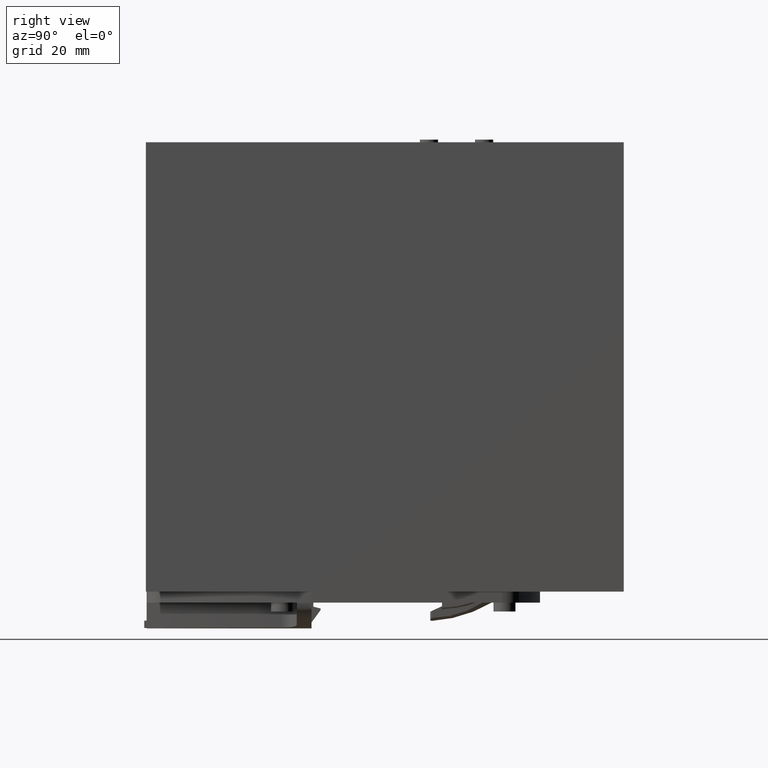
[diagram: clean part render]
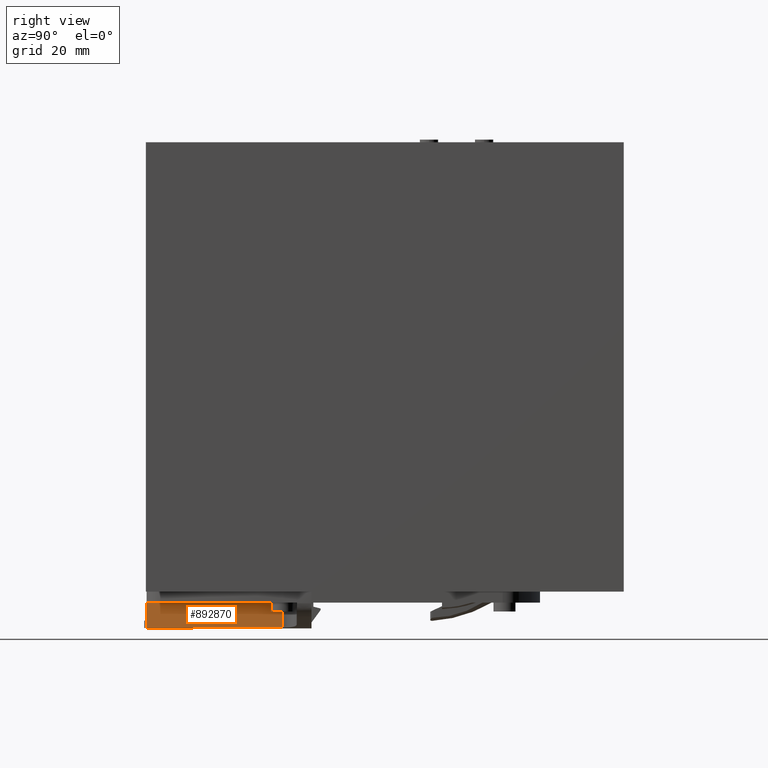
[diagram: same view with one face highlighted and labeled with its STEP entity id]
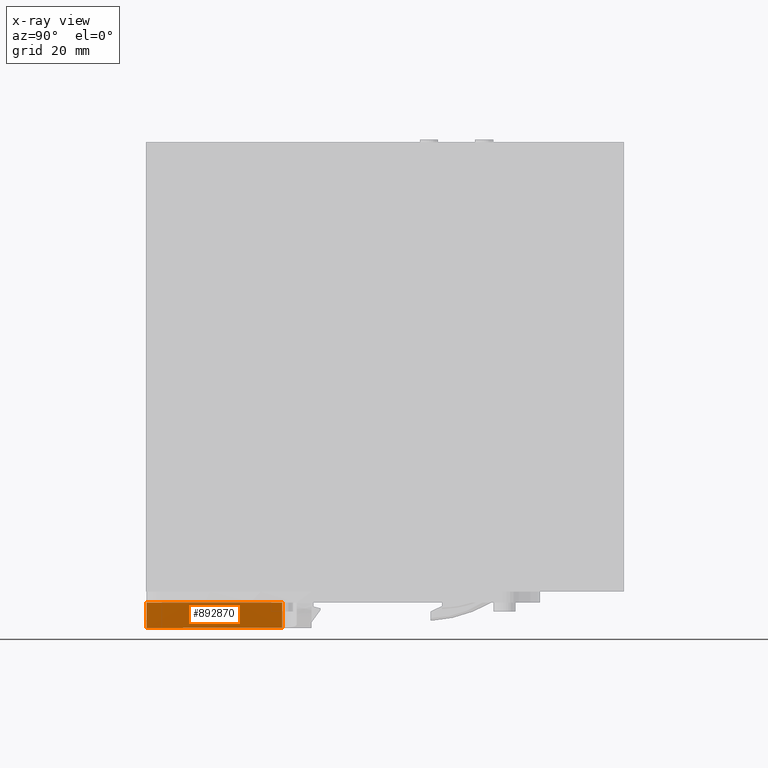
[diagram: x-ray of the same camera — body ghosted, the highlighted face saturated]
A machine part, right view. The second image highlights one B-rep face of the part: STEP entity #892870.
The next image is the same camera in x-ray: the body ghosted, the highlighted face saturated — about 0% of this face is hidden behind the body in this view.
In plain terms, the highlighted cylindrical surface (partial cylindrical patch) has radius 401.5 mm, axis along (0, 0, -1).
Its self-contained STEP definition (entity closure, byte-faithful):
#891610=CARTESIAN_POINT('',(45.2,20.0999999999917,84.0992150856014));
#891620=DIRECTION('',(0.,0.,1.));
#891630=DIRECTION('',(1.,0.,0.));
#891640=AXIS2_PLACEMENT_3D('',#891610,#891620,#891630);
#891650=CYLINDRICAL_SURFACE('',#891640,30.);
#891730=CARTESIAN_POINT('',(46.9167256523205,-9.85084060648655,
128.946849890801));
#891740=VERTEX_POINT('',#891730);
#891770=CARTESIAN_POINT('',(-352.5,-3.30000000000838,88.0992150856014));
#891780=DIRECTION('',(0.,-1.,0.));
#891790=DIRECTION('',(0.,0.,-1.));
#891800=AXIS2_PLACEMENT_3D('',#891770,#891780,#891790);
#891810=CYLINDRICAL_SURFACE('',#891800,401.5);
#891820=CARTESIAN_POINT('',(48.9804885015026,-9.66084519449211,
92.0574157620202));
#891830=CARTESIAN_POINT('',(48.9501248284786,-9.66470225957143,
95.1372046042124));
#891840=CARTESIAN_POINT('',(48.8843228662095,-9.67307779411707,
98.2166487199245));
#891850=CARTESIAN_POINT('',(48.7830903978755,-9.6852558021775,
101.295099320109));
#891860=CARTESIAN_POINT('',(48.6818572648279,-9.69743389020127,
104.373570134042));
#891870=CARTESIAN_POINT('',(48.5452119991133,-9.71341123584439,
107.450557868924));
#891880=CARTESIAN_POINT('',(48.373171441094,-9.73171103047765,
110.525771191237));
#891890=CARTESIAN_POINT('',(48.2011301242742,-9.75001090582384,
113.600998077061));
#891900=CARTESIAN_POINT('',(47.9936987764255,-9.77063110475459,
116.674252528447));
#891910=CARTESIAN_POINT('',(47.7509514057811,-9.7913473588251,
119.744529095214));
#891920=CARTESIAN_POINT('',(47.5081965169944,-9.81206425449986,
122.814900751686));
#891930=CARTESIAN_POINT('',(47.2300864481674,-9.83287935712697,
125.882742418683));
#891940=CARTESIAN_POINT('',(46.9167256523205,-9.85084060648655,
128.946849890801));
#891950=B_SPLINE_CURVE_WITH_KNOTS('',3,(#891820,#891830,#891840,#891850,
#891860,#891870,#891880,#891890,#891900,#891910,#891920,#891930,#891940)
,.UNSPECIFIED.,.F.,.F.,(4,3,3,3,4),(0.,9.24003135655891,18.4801228629656
,27.7202518657636,36.9607039303101),.UNSPECIFIED.);
#891960=SURFACE_CURVE('',#891950,(#891810,#891650),.CURVE_3D.);
#891970=CARTESIAN_POINT('',(48.9804885015026,-9.66084519449173,
92.0574157620202));
#891980=VERTEX_POINT('',#891970);
#891990=EDGE_CURVE('',#891980,#891740,#891960,.T.);
#892610=ORIENTED_EDGE('',*,*,#891990,.F.);
#892620=CARTESIAN_POINT('',(46.9167256523205,-3.30000000000838,
128.946849890801));
#892630=DIRECTION('',(0.,-1.,0.));
#892640=VECTOR('',#892630,1.);
#892650=LINE('',#892620,#892640);
#892660=CARTESIAN_POINT('',(46.9167256523205,-2.90000000000834,
128.946849890801));
#892670=VERTEX_POINT('',#892660);
#892680=EDGE_CURVE('',#892670,#891740,#892650,.T.);
#892690=ORIENTED_EDGE('',*,*,#892680,.T.);
#892700=CARTESIAN_POINT('',(-352.5,-2.90000000000834,88.0992150856014));
#892710=DIRECTION('',(0.,-1.,0.));
#892720=DIRECTION('',(0.,0.,-1.));
#892730=AXIS2_PLACEMENT_3D('',#892700,#892710,#892720);
#892740=CIRCLE('',#892730,401.5);
#892750=CARTESIAN_POINT('',(48.9804885015026,-2.90000000000834,
92.0574157620202));
#892760=VERTEX_POINT('',#892750);
#892770=EDGE_CURVE('',#892760,#892670,#892740,.T.);
#892780=ORIENTED_EDGE('',*,*,#892770,.T.);
#892790=CARTESIAN_POINT('',(48.9804885015026,-3.30000000000838,
92.0574157620202));
#892800=DIRECTION('',(0.,-1.,0.));
#892810=VECTOR('',#892800,1.);
#892820=LINE('',#892790,#892810);
#892830=EDGE_CURVE('',#892760,#891980,#892820,.T.);
#892840=ORIENTED_EDGE('',*,*,#892830,.F.);
#892850=EDGE_LOOP('',(#892840,#892780,#892690,#892610));
#892860=FACE_OUTER_BOUND('',#892850,.T.);
#892870=ADVANCED_FACE('',(#892860),#891810,.T.);